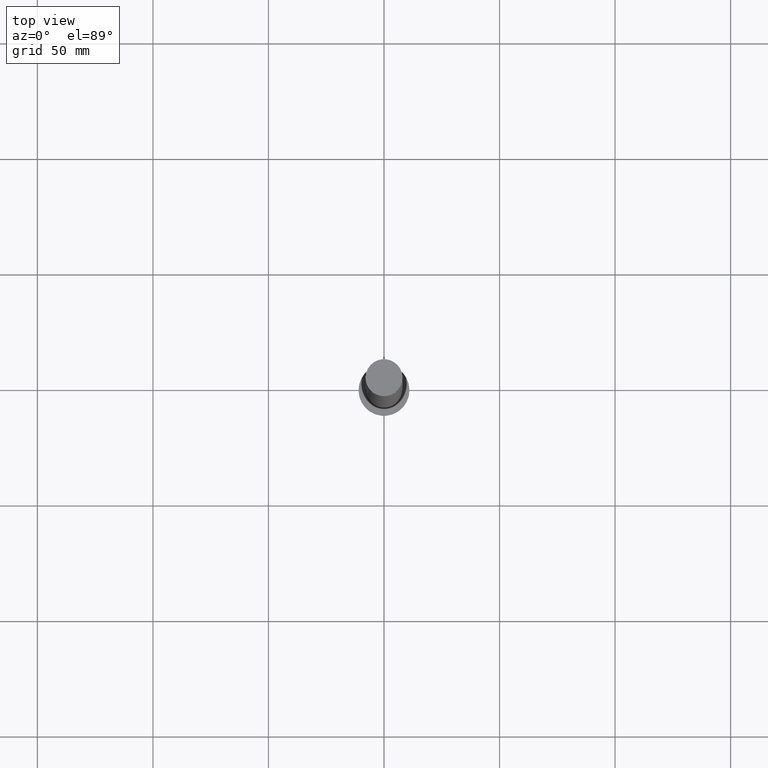
[diagram: clean part render]
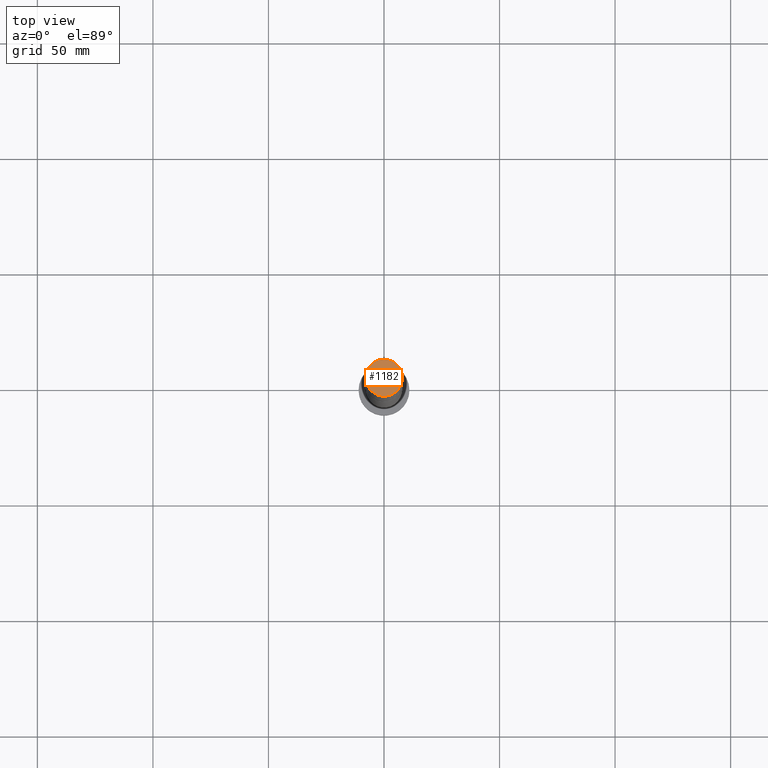
[diagram: same view with one face highlighted and labeled with its STEP entity id]
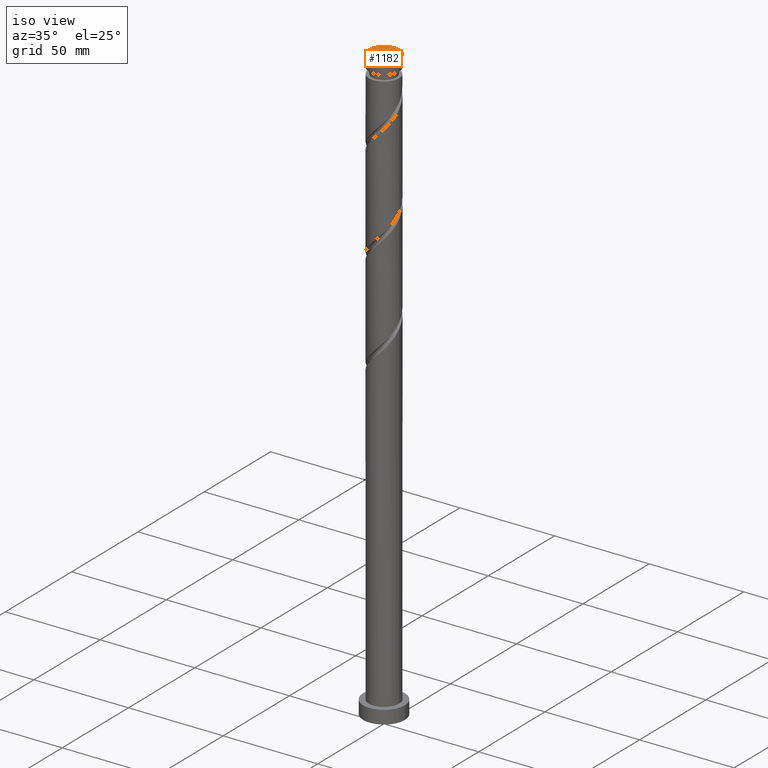
[diagram: same view with one face highlighted and labeled with its STEP entity id]
A machine part, top view. The second image highlights one B-rep face of the part: STEP entity #1182.
A second angle (iso view) of the same face is appended — the face is thin or edge-on in the first view.
In plain terms, the highlighted planar face has unit normal (0, 0, 1).
Its self-contained STEP definition (entity closure, byte-faithful):
#19 = EDGE_CURVE ( 'NONE', #1310, #233, #1577, .T. ) ;
#64 = EDGE_CURVE ( 'NONE', #233, #1310, #862, .T. ) ;
#197 = DIRECTION ( 'NONE',  ( 0.000000000000000000, 0.000000000000000000, 1.000000000000000000 ) ) ;
#208 = CARTESIAN_POINT ( 'NONE',  ( 0.000000000000000000, 0.000000000000000000, 315.0000000000000000 ) ) ;
#233 = VERTEX_POINT ( 'NONE', #1419 ) ;
#358 = DIRECTION ( 'NONE',  ( 0.000000000000000000, 0.000000000000000000, 1.000000000000000000 ) ) ;
#379 = PLANE ( 'NONE',  #1891 ) ;
#655 = CARTESIAN_POINT ( 'NONE',  ( 0.000000000000000000, 0.000000000000000000, 315.0000000000000000 ) ) ;
#737 = AXIS2_PLACEMENT_3D ( 'NONE', #655, #358, #947 ) ;
#817 = ORIENTED_EDGE ( 'NONE', *, *, #19, .T. ) ;
#862 = CIRCLE ( 'NONE', #1921, 8.000000000000000000 ) ;
#918 = DIRECTION ( 'NONE',  ( 1.000000000000000000, 0.000000000000000000, 0.000000000000000000 ) ) ;
#947 = DIRECTION ( 'NONE',  ( 1.000000000000000000, 0.000000000000000000, 0.000000000000000000 ) ) ;
#956 = DIRECTION ( 'NONE',  ( 1.000000000000000000, 0.000000000000000000, -0.000000000000000000 ) ) ;
#966 = CARTESIAN_POINT ( 'NONE',  ( 0.000000000000000000, 0.000000000000000000, 315.0000000000000000 ) ) ;
#1182 = ADVANCED_FACE ( 'NONE', ( #1707 ), #379, .T. ) ;
#1310 = VERTEX_POINT ( 'NONE', #1321 ) ;
#1321 = CARTESIAN_POINT ( 'NONE',  ( 8.000000000000000000, 9.797174393178825657E-16, 315.0000000000000000 ) ) ;
#1419 = CARTESIAN_POINT ( 'NONE',  ( -8.000000000000000000, 0.000000000000000000, 315.0000000000000000 ) ) ;
#1543 = EDGE_LOOP ( 'NONE', ( #1848, #817 ) ) ;
#1577 = CIRCLE ( 'NONE', #737, 8.000000000000000000 ) ;
#1685 = DIRECTION ( 'NONE',  ( 0.000000000000000000, 0.000000000000000000, 1.000000000000000000 ) ) ;
#1707 = FACE_OUTER_BOUND ( 'NONE', #1543, .T. ) ;
#1848 = ORIENTED_EDGE ( 'NONE', *, *, #64, .T. ) ;
#1891 = AXIS2_PLACEMENT_3D ( 'NONE', #966, #197, #956 ) ;
#1921 = AXIS2_PLACEMENT_3D ( 'NONE', #208, #1685, #918 ) ;